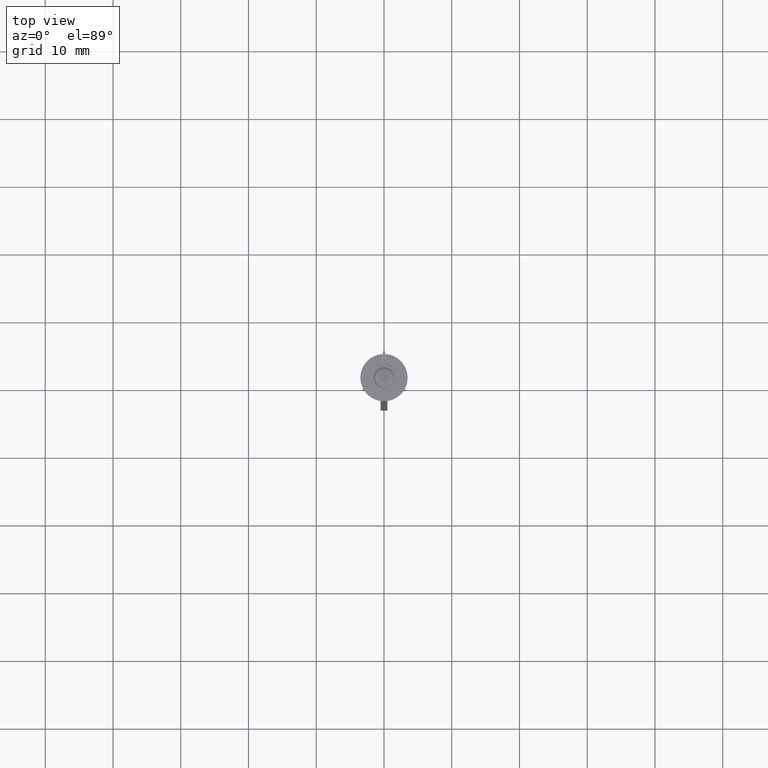
[diagram: clean part render]
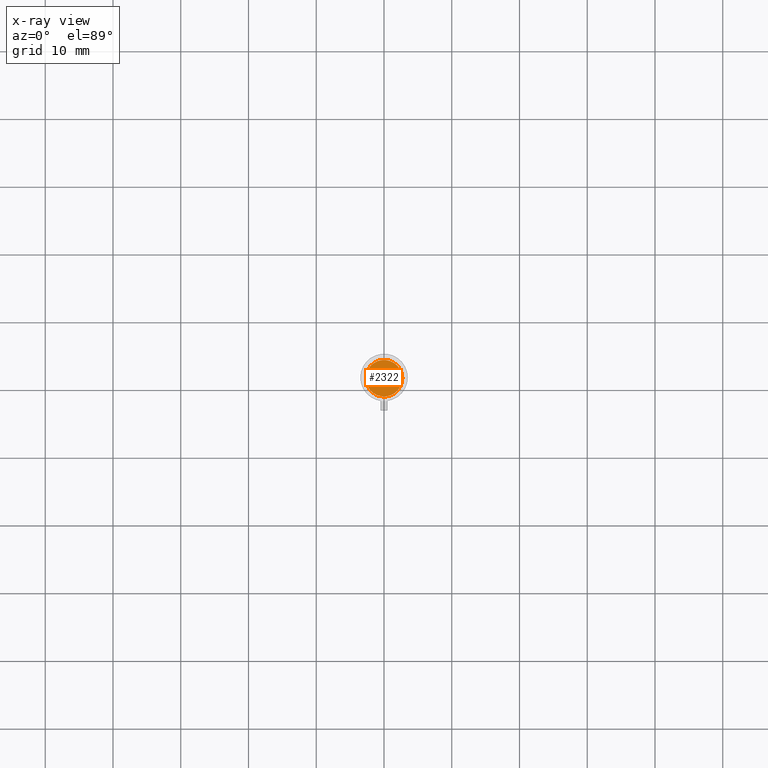
[diagram: x-ray — body ghosted, one internal face saturated and labeled with its STEP entity id]
A machine part, top view, then the same camera in x-ray: the body is ghosted and one INTERNAL B-rep face — a face not visible from any outside direction — is saturated and labeled: STEP entity #2322.
In plain terms, the highlighted planar face has unit normal (0, 0, -1).
Its self-contained STEP definition (entity closure, byte-faithful):
#25 = CARTESIAN_POINT ( 'NONE',  ( 0.000000000000000000, 0.000000000000000000, -5.500000000000000000 ) ) ;
#205 = ORIENTED_EDGE ( 'NONE', *, *, #2305, .T. ) ;
#286 = EDGE_CURVE ( 'NONE', #2192, #322, #1823, .T. ) ;
#292 = CARTESIAN_POINT ( 'NONE',  ( -2.700000000000002398, 0.000000000000000000, -5.500000000000000000 ) ) ;
#322 = VERTEX_POINT ( 'NONE', #292 ) ;
#389 = ORIENTED_EDGE ( 'NONE', *, *, #286, .T. ) ;
#405 = CARTESIAN_POINT ( 'NONE',  ( 0.000000000000000000, 0.000000000000000000, -5.500000000000000000 ) ) ;
#568 = DIRECTION ( 'NONE',  ( -1.000000000000000000, 0.000000000000000000, 0.000000000000000000 ) ) ;
#697 = CARTESIAN_POINT ( 'NONE',  ( 2.700000000000002398, 3.490243377569959512E-16, -5.500000000000000000 ) ) ;
#760 = DIRECTION ( 'NONE',  ( 0.000000000000000000, 0.000000000000000000, -1.000000000000000000 ) ) ;
#963 = AXIS2_PLACEMENT_3D ( 'NONE', #2190, #1296, #2014 ) ;
#1129 = PLANE ( 'NONE',  #1305 ) ;
#1296 = DIRECTION ( 'NONE',  ( -0.000000000000000000, -0.000000000000000000, 1.000000000000000000 ) ) ;
#1304 = DIRECTION ( 'NONE',  ( -1.000000000000000000, 0.000000000000000000, -0.000000000000000000 ) ) ;
#1305 = AXIS2_PLACEMENT_3D ( 'NONE', #405, #760, #1304 ) ;
#1497 = FACE_OUTER_BOUND ( 'NONE', #2128, .T. ) ;
#1823 = CIRCLE ( 'NONE', #963, 2.700000000000002398 ) ;
#1874 = AXIS2_PLACEMENT_3D ( 'NONE', #25, #2176, #568 ) ;
#2014 = DIRECTION ( 'NONE',  ( -1.000000000000000000, 0.000000000000000000, 0.000000000000000000 ) ) ;
#2128 = EDGE_LOOP ( 'NONE', ( #205, #389 ) ) ;
#2176 = DIRECTION ( 'NONE',  ( -0.000000000000000000, -0.000000000000000000, 1.000000000000000000 ) ) ;
#2190 = CARTESIAN_POINT ( 'NONE',  ( 0.000000000000000000, 0.000000000000000000, -5.500000000000000000 ) ) ;
#2192 = VERTEX_POINT ( 'NONE', #697 ) ;
#2305 = EDGE_CURVE ( 'NONE', #322, #2192, #2326, .T. ) ;
#2322 = ADVANCED_FACE ( 'NONE', ( #1497 ), #1129, .F. ) ;
#2326 = CIRCLE ( 'NONE', #1874, 2.700000000000002398 ) ;